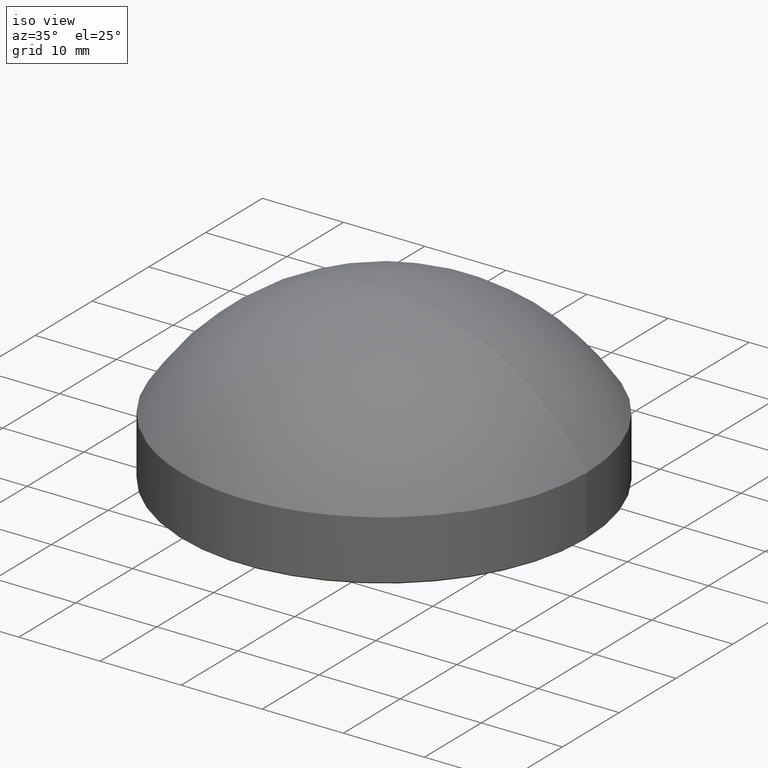
[diagram: clean part render]
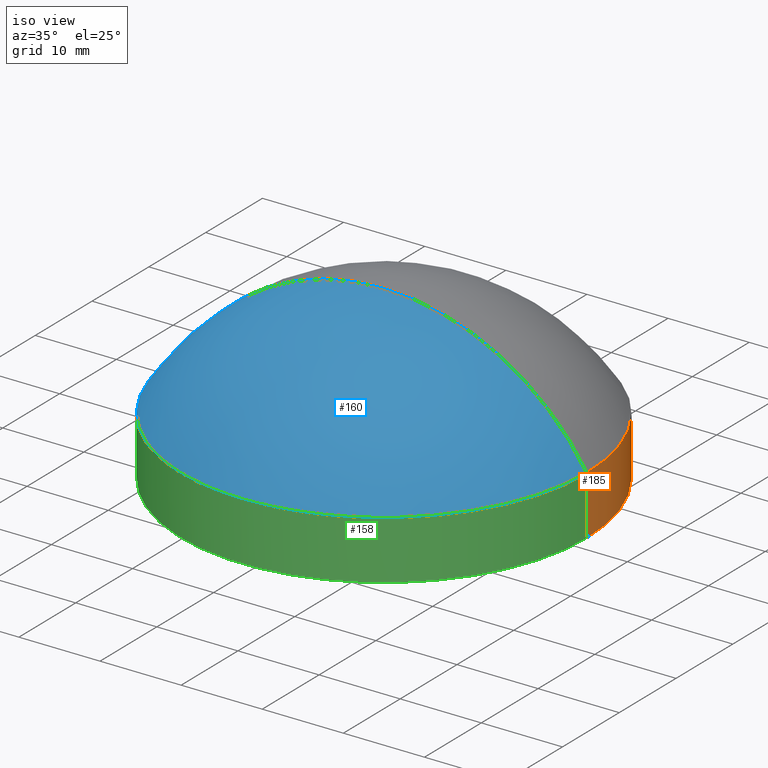
[diagram: same view with three faces highlighted in distinct colors, each labeled with its STEP entity id]
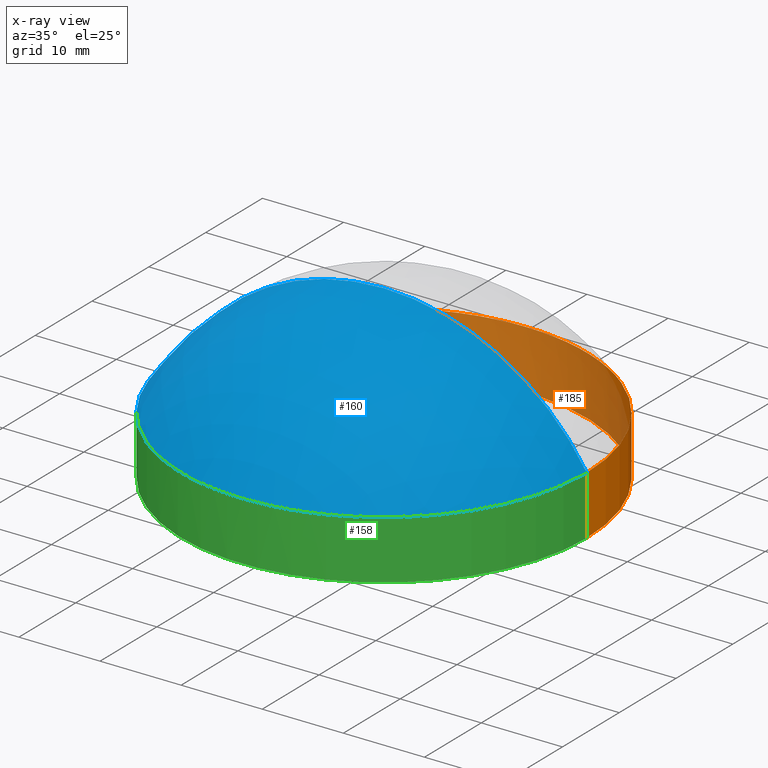
[diagram: x-ray of the same camera — body ghosted, the three highlighted faces saturated]
A machine part, iso view with three faces highlighted in distinct colors.
The next image is the same camera in x-ray (body ghosted, the three faces saturated) — at least one of them is partly hidden behind the body in this view.
Their STEP definitions:

[orange] entity #185 — the highlighted cylindrical surface (partial cylindrical patch) has radius 25 mm, axis along (-0, -0, -1).
#6 = LINE ( 'NONE', #68, #162 ) ;
#12 = CARTESIAN_POINT ( 'NONE',  ( 25.00000000000000000, 3.061616997868382254E-15, 7.469999999999999751 ) ) ;
#33 = CARTESIAN_POINT ( 'NONE',  ( 25.00000000000000000, 3.061616997868382254E-15, 7.469999999999999751 ) ) ;
#38 = EDGE_CURVE ( 'NONE', #191, #140, #214, .T. ) ;
#39 = EDGE_LOOP ( 'NONE', ( #206, #138, #120, #170 ) ) ;
#50 = CARTESIAN_POINT ( 'NONE',  ( -25.00000000000000000, 0.000000000000000000, 0.2000000000000196065 ) ) ;
#61 = AXIS2_PLACEMENT_3D ( 'NONE', #141, #156, #211 ) ;
#62 = CIRCLE ( 'NONE', #91, 25.00000000000000000 ) ;
#65 = EDGE_CURVE ( 'NONE', #85, #137, #62, .T. ) ;
#68 = CARTESIAN_POINT ( 'NONE',  ( -25.00000000000000000, 0.000000000000000000, 7.469999999999999751 ) ) ;
#71 = AXIS2_PLACEMENT_3D ( 'NONE', #190, #102, #103 ) ;
#78 = DIRECTION ( 'NONE',  ( -0.000000000000000000, -0.000000000000000000, -1.000000000000000000 ) ) ;
#80 = FACE_OUTER_BOUND ( 'NONE', #39, .T. ) ;
#84 = CARTESIAN_POINT ( 'NONE',  ( -25.00000000000000000, 0.000000000000000000, 7.469999999999999751 ) ) ;
#85 = VERTEX_POINT ( 'NONE', #169 ) ;
#91 = AXIS2_PLACEMENT_3D ( 'NONE', #163, #134, #150 ) ;
#102 = DIRECTION ( 'NONE',  ( 0.000000000000000000, 0.000000000000000000, 1.000000000000000000 ) ) ;
#103 = DIRECTION ( 'NONE',  ( 1.000000000000000000, 0.000000000000000000, 0.000000000000000000 ) ) ;
#110 = LINE ( 'NONE', #33, #178 ) ;
#112 = EDGE_CURVE ( 'NONE', #140, #137, #6, .T. ) ;
#120 = ORIENTED_EDGE ( 'NONE', *, *, #65, .T. ) ;
#122 = DIRECTION ( 'NONE',  ( -0.000000000000000000, -0.000000000000000000, -1.000000000000000000 ) ) ;
#134 = DIRECTION ( 'NONE',  ( -0.000000000000000000, -0.000000000000000000, 1.000000000000000000 ) ) ;
#137 = VERTEX_POINT ( 'NONE', #50 ) ;
#138 = ORIENTED_EDGE ( 'NONE', *, *, #208, .T. ) ;
#140 = VERTEX_POINT ( 'NONE', #84 ) ;
#141 = CARTESIAN_POINT ( 'NONE',  ( 0.000000000000000000, 0.000000000000000000, 7.469999999999999751 ) ) ;
#150 = DIRECTION ( 'NONE',  ( 1.000000000000000000, 0.000000000000000000, 0.000000000000000000 ) ) ;
#156 = DIRECTION ( 'NONE',  ( -0.000000000000000000, -0.000000000000000000, -1.000000000000000000 ) ) ;
#162 = VECTOR ( 'NONE', #122, 1000.000000000000000 ) ;
#163 = CARTESIAN_POINT ( 'NONE',  ( 0.000000000000000000, 0.000000000000000000, 0.2000000000000196065 ) ) ;
#169 = CARTESIAN_POINT ( 'NONE',  ( 25.00000000000000000, 3.061616997868382254E-15, 0.2000000000000196065 ) ) ;
#170 = ORIENTED_EDGE ( 'NONE', *, *, #112, .F. ) ;
#178 = VECTOR ( 'NONE', #78, 1000.000000000000000 ) ;
#185 = ADVANCED_FACE ( 'NONE', ( #80 ), #194, .T. ) ;
#190 = CARTESIAN_POINT ( 'NONE',  ( 0.000000000000000000, 0.000000000000000000, 7.469999999999999751 ) ) ;
#191 = VERTEX_POINT ( 'NONE', #12 ) ;
#194 = CYLINDRICAL_SURFACE ( 'NONE', #61, 25.00000000000000000 ) ;
#206 = ORIENTED_EDGE ( 'NONE', *, *, #38, .F. ) ;
#208 = EDGE_CURVE ( 'NONE', #191, #85, #110, .T. ) ;
#211 = DIRECTION ( 'NONE',  ( -1.000000000000000000, 0.000000000000000000, 0.000000000000000000 ) ) ;
#214 = CIRCLE ( 'NONE', #71, 25.00000000000000000 ) ;

[blue] entity #160 — the highlighted spherical surface has radius 29.4656 mm.
#12 = CARTESIAN_POINT ( 'NONE',  ( 25.00000000000000000, 3.061616997868382254E-15, 7.469999999999999751 ) ) ;
#14 = DIRECTION ( 'NONE',  ( -1.224646799147353207E-16, -1.000000000000000000, -0.000000000000000000 ) ) ;
#18 = CARTESIAN_POINT ( 'NONE',  ( 0.000000000000000000, 0.000000000000000000, 7.469999999999999751 ) ) ;
#22 = ORIENTED_EDGE ( 'NONE', *, *, #182, .F. ) ;
#24 = ORIENTED_EDGE ( 'NONE', *, *, #189, .T. ) ;
#31 = DIRECTION ( 'NONE',  ( 0.000000000000000000, 0.000000000000000000, 1.000000000000000000 ) ) ;
#43 = CARTESIAN_POINT ( 'NONE',  ( 0.000000000000000000, 0.000000000000000000, -8.125641672674834837 ) ) ;
#46 = AXIS2_PLACEMENT_3D ( 'NONE', #18, #83, #148 ) ;
#47 = CARTESIAN_POINT ( 'NONE',  ( 0.000000000000000000, 0.000000000000000000, -8.125641672674834837 ) ) ;
#54 = AXIS2_PLACEMENT_3D ( 'NONE', #47, #14, #111 ) ;
#56 = ORIENTED_EDGE ( 'NONE', *, *, #121, .T. ) ;
#63 = AXIS2_PLACEMENT_3D ( 'NONE', #43, #106, #174 ) ;
#66 = VERTEX_POINT ( 'NONE', #99 ) ;
#76 = FACE_OUTER_BOUND ( 'NONE', #77, .T. ) ;
#77 = EDGE_LOOP ( 'NONE', ( #56, #24, #22 ) ) ;
#83 = DIRECTION ( 'NONE',  ( 0.000000000000000000, 0.000000000000000000, 1.000000000000000000 ) ) ;
#84 = CARTESIAN_POINT ( 'NONE',  ( -25.00000000000000000, 0.000000000000000000, 7.469999999999999751 ) ) ;
#88 = CIRCLE ( 'NONE', #54, 29.46564167267484180 ) ;
#99 = CARTESIAN_POINT ( 'NONE',  ( -1.804250187963205365E-15, 0.000000000000000000, 21.34000000000000341 ) ) ;
#101 = AXIS2_PLACEMENT_3D ( 'NONE', #180, #130, #31 ) ;
#106 = DIRECTION ( 'NONE',  ( -0.000000000000000000, -1.000000000000000000, 0.000000000000000000 ) ) ;
#111 = DIRECTION ( 'NONE',  ( 1.000000000000000000, -1.224646799147353207E-16, 0.000000000000000000 ) ) ;
#121 = EDGE_CURVE ( 'NONE', #140, #191, #183, .T. ) ;
#130 = DIRECTION ( 'NONE',  ( 0.000000000000000000, 1.000000000000000000, 0.000000000000000000 ) ) ;
#140 = VERTEX_POINT ( 'NONE', #84 ) ;
#148 = DIRECTION ( 'NONE',  ( 1.000000000000000000, 0.000000000000000000, 0.000000000000000000 ) ) ;
#160 = ADVANCED_FACE ( 'NONE', ( #76 ), #192, .T. ) ;
#174 = DIRECTION ( 'NONE',  ( -1.000000000000000000, 0.000000000000000000, 0.000000000000000000 ) ) ;
#180 = CARTESIAN_POINT ( 'NONE',  ( 0.000000000000000000, 0.000000000000000000, -8.125641672674834837 ) ) ;
#182 = EDGE_CURVE ( 'NONE', #140, #66, #200, .T. ) ;
#183 = CIRCLE ( 'NONE', #46, 25.00000000000000000 ) ;
#189 = EDGE_CURVE ( 'NONE', #191, #66, #88, .T. ) ;
#191 = VERTEX_POINT ( 'NONE', #12 ) ;
#192 = SPHERICAL_SURFACE ( 'NONE', #63, 29.46564167267484180 ) ;
#200 = CIRCLE ( 'NONE', #101, 29.46564167267484180 ) ;

[green] entity #158 — the highlighted cylindrical surface (partial cylindrical patch) has radius 25 mm, axis along (-0, -0, -1).
#3 = DIRECTION ( 'NONE',  ( -0.000000000000000000, -0.000000000000000000, 1.000000000000000000 ) ) ;
#6 = LINE ( 'NONE', #68, #162 ) ;
#9 = CYLINDRICAL_SURFACE ( 'NONE', #171, 25.00000000000000000 ) ;
#10 = FACE_OUTER_BOUND ( 'NONE', #107, .T. ) ;
#12 = CARTESIAN_POINT ( 'NONE',  ( 25.00000000000000000, 3.061616997868382254E-15, 7.469999999999999751 ) ) ;
#18 = CARTESIAN_POINT ( 'NONE',  ( 0.000000000000000000, 0.000000000000000000, 7.469999999999999751 ) ) ;
#21 = CARTESIAN_POINT ( 'NONE',  ( 0.000000000000000000, 0.000000000000000000, 0.2000000000000196065 ) ) ;
#28 = ORIENTED_EDGE ( 'NONE', *, *, #112, .T. ) ;
#33 = CARTESIAN_POINT ( 'NONE',  ( 25.00000000000000000, 3.061616997868382254E-15, 7.469999999999999751 ) ) ;
#46 = AXIS2_PLACEMENT_3D ( 'NONE', #18, #83, #148 ) ;
#48 = ORIENTED_EDGE ( 'NONE', *, *, #131, .T. ) ;
#50 = CARTESIAN_POINT ( 'NONE',  ( -25.00000000000000000, 0.000000000000000000, 0.2000000000000196065 ) ) ;
#68 = CARTESIAN_POINT ( 'NONE',  ( -25.00000000000000000, 0.000000000000000000, 7.469999999999999751 ) ) ;
#69 = CIRCLE ( 'NONE', #113, 25.00000000000000000 ) ;
#75 = DIRECTION ( 'NONE',  ( -0.000000000000000000, -0.000000000000000000, -1.000000000000000000 ) ) ;
#78 = DIRECTION ( 'NONE',  ( -0.000000000000000000, -0.000000000000000000, -1.000000000000000000 ) ) ;
#83 = DIRECTION ( 'NONE',  ( 0.000000000000000000, 0.000000000000000000, 1.000000000000000000 ) ) ;
#84 = CARTESIAN_POINT ( 'NONE',  ( -25.00000000000000000, 0.000000000000000000, 7.469999999999999751 ) ) ;
#85 = VERTEX_POINT ( 'NONE', #169 ) ;
#100 = ORIENTED_EDGE ( 'NONE', *, *, #121, .F. ) ;
#107 = EDGE_LOOP ( 'NONE', ( #159, #100, #28, #48 ) ) ;
#110 = LINE ( 'NONE', #33, #178 ) ;
#112 = EDGE_CURVE ( 'NONE', #140, #137, #6, .T. ) ;
#113 = AXIS2_PLACEMENT_3D ( 'NONE', #21, #3, #133 ) ;
#121 = EDGE_CURVE ( 'NONE', #140, #191, #183, .T. ) ;
#122 = DIRECTION ( 'NONE',  ( -0.000000000000000000, -0.000000000000000000, -1.000000000000000000 ) ) ;
#131 = EDGE_CURVE ( 'NONE', #137, #85, #69, .T. ) ;
#133 = DIRECTION ( 'NONE',  ( 1.000000000000000000, 0.000000000000000000, 0.000000000000000000 ) ) ;
#137 = VERTEX_POINT ( 'NONE', #50 ) ;
#140 = VERTEX_POINT ( 'NONE', #84 ) ;
#142 = CARTESIAN_POINT ( 'NONE',  ( 0.000000000000000000, 0.000000000000000000, 7.469999999999999751 ) ) ;
#148 = DIRECTION ( 'NONE',  ( 1.000000000000000000, 0.000000000000000000, 0.000000000000000000 ) ) ;
#158 = ADVANCED_FACE ( 'NONE', ( #10 ), #9, .T. ) ;
#159 = ORIENTED_EDGE ( 'NONE', *, *, #208, .F. ) ;
#162 = VECTOR ( 'NONE', #122, 1000.000000000000000 ) ;
#169 = CARTESIAN_POINT ( 'NONE',  ( 25.00000000000000000, 3.061616997868382254E-15, 0.2000000000000196065 ) ) ;
#171 = AXIS2_PLACEMENT_3D ( 'NONE', #142, #75, #210 ) ;
#178 = VECTOR ( 'NONE', #78, 1000.000000000000000 ) ;
#183 = CIRCLE ( 'NONE', #46, 25.00000000000000000 ) ;
#191 = VERTEX_POINT ( 'NONE', #12 ) ;
#208 = EDGE_CURVE ( 'NONE', #191, #85, #110, .T. ) ;
#210 = DIRECTION ( 'NONE',  ( -1.000000000000000000, 0.000000000000000000, 0.000000000000000000 ) ) ;